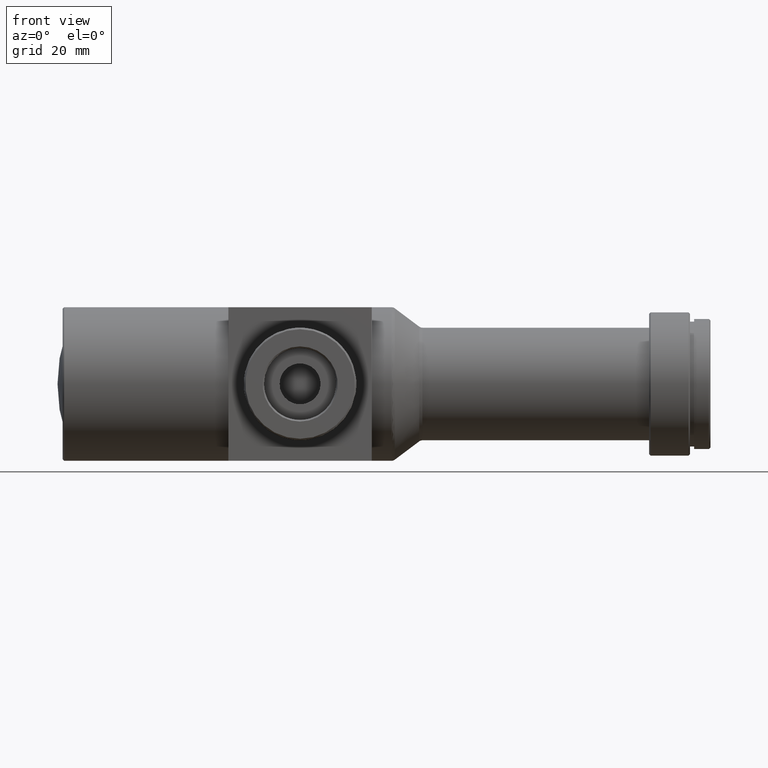
[diagram: clean part render]
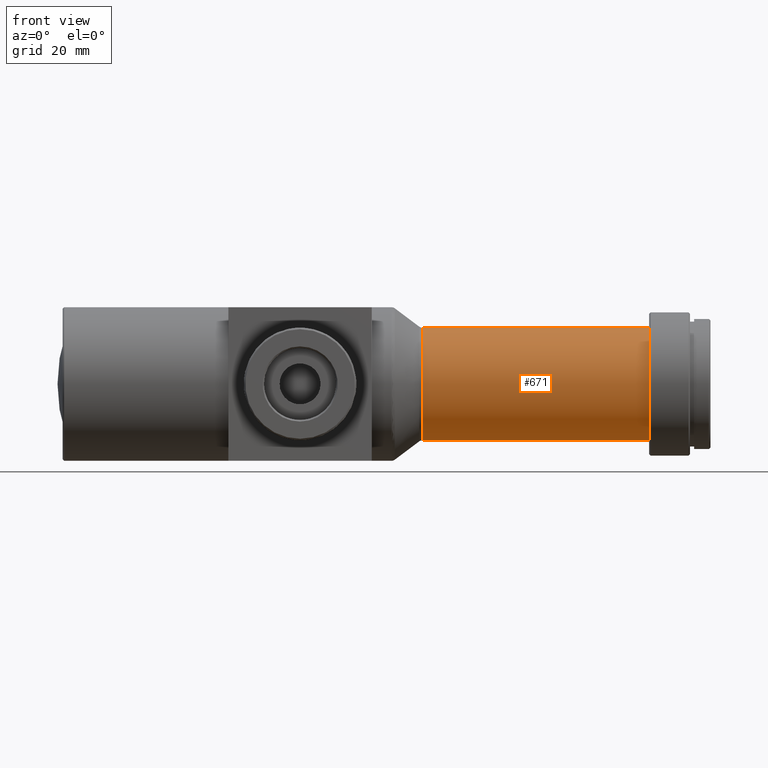
[diagram: same view with one face highlighted and labeled with its STEP entity id]
A machine part, front view. The second image highlights one B-rep face of the part: STEP entity #671.
In plain terms, the highlighted cylindrical surface (bore or boss wall) has radius 11 mm, axis along (-1, -0, -0).
Its self-contained STEP definition (entity closure, byte-faithful):
#25 = AXIS2_PLACEMENT_3D ( 'NONE', #396, #498, #482 ) ;
#48 = AXIS2_PLACEMENT_3D ( 'NONE', #332, #815, #712 ) ;
#56 = EDGE_CURVE ( 'NONE', #698, #698, #506, .T. ) ;
#103 = EDGE_LOOP ( 'NONE', ( #300 ) ) ;
#300 = ORIENTED_EDGE ( 'NONE', *, *, #56, .T. ) ;
#332 = CARTESIAN_POINT ( 'NONE',  ( 0.000000000000000000, 0.000000000000000000, 0.000000000000000000 ) ) ;
#396 = CARTESIAN_POINT ( 'NONE',  ( 114.6000000000000085, 0.000000000000000000, 0.000000000000000000 ) ) ;
#482 = DIRECTION ( 'NONE',  ( 0.000000000000000000, 0.000000000000000000, 1.000000000000000000 ) ) ;
#486 = DIRECTION ( 'NONE',  ( 1.000000000000000000, 0.000000000000000000, 0.000000000000000000 ) ) ;
#491 = AXIS2_PLACEMENT_3D ( 'NONE', #581, #486, #866 ) ;
#498 = DIRECTION ( 'NONE',  ( -1.000000000000000000, -0.000000000000000000, -0.000000000000000000 ) ) ;
#506 = CIRCLE ( 'NONE', #25, 11.00000000000000000 ) ;
#581 = CARTESIAN_POINT ( 'NONE',  ( 70.29999999999999716, 0.000000000000000000, 0.000000000000000000 ) ) ;
#600 = CARTESIAN_POINT ( 'NONE',  ( 114.6000000000000085, 0.000000000000000000, 11.00000000000000000 ) ) ;
#620 = EDGE_LOOP ( 'NONE', ( #1195 ) ) ;
#627 = FACE_OUTER_BOUND ( 'NONE', #620, .T. ) ;
#671 = ADVANCED_FACE ( 'NONE', ( #627, #1196 ), #1184, .T. ) ;
#698 = VERTEX_POINT ( 'NONE', #600 ) ;
#707 = VERTEX_POINT ( 'NONE', #824 ) ;
#712 = DIRECTION ( 'NONE',  ( 0.000000000000000000, 0.000000000000000000, 1.000000000000000000 ) ) ;
#815 = DIRECTION ( 'NONE',  ( -1.000000000000000000, -0.000000000000000000, -0.000000000000000000 ) ) ;
#824 = CARTESIAN_POINT ( 'NONE',  ( 70.29999999999999716, 0.000000000000000000, 11.00000000000000000 ) ) ;
#866 = DIRECTION ( 'NONE',  ( 0.000000000000000000, 0.000000000000000000, 1.000000000000000000 ) ) ;
#869 = CIRCLE ( 'NONE', #491, 11.00000000000000000 ) ;
#1094 = EDGE_CURVE ( 'NONE', #707, #707, #869, .T. ) ;
#1184 = CYLINDRICAL_SURFACE ( 'NONE', #48, 11.00000000000000000 ) ;
#1195 = ORIENTED_EDGE ( 'NONE', *, *, #1094, .T. ) ;
#1196 = FACE_OUTER_BOUND ( 'NONE', #103, .T. ) ;